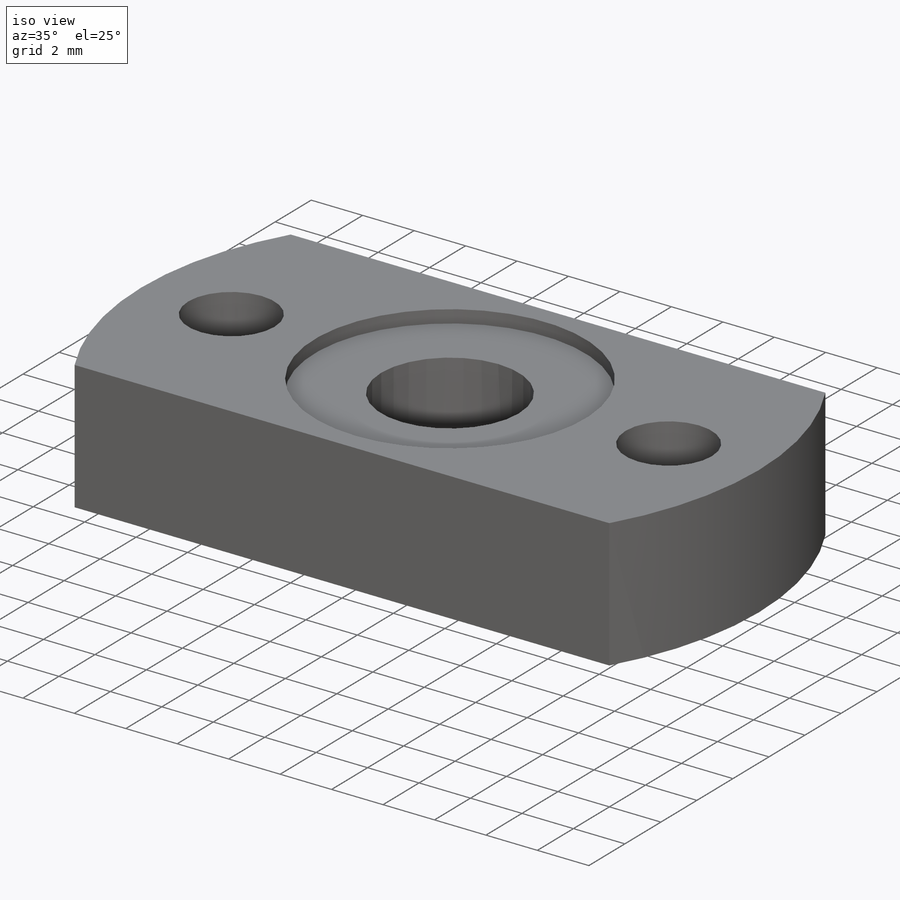
[diagram: iso view]
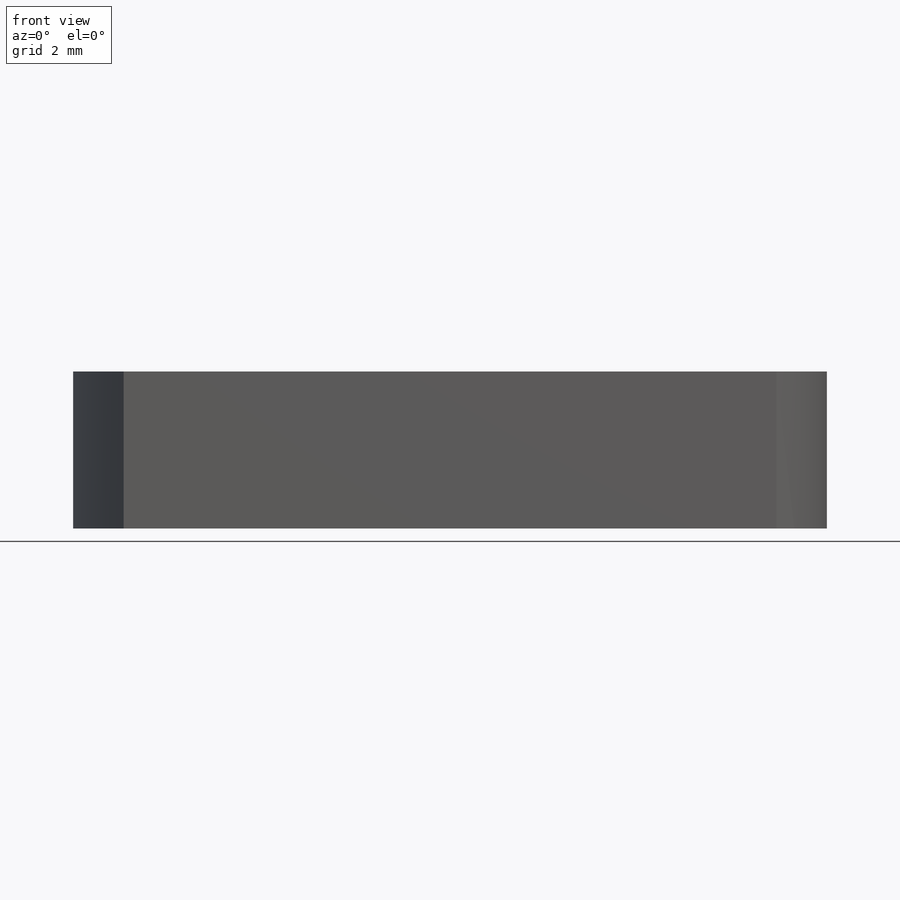
[diagram: front view]
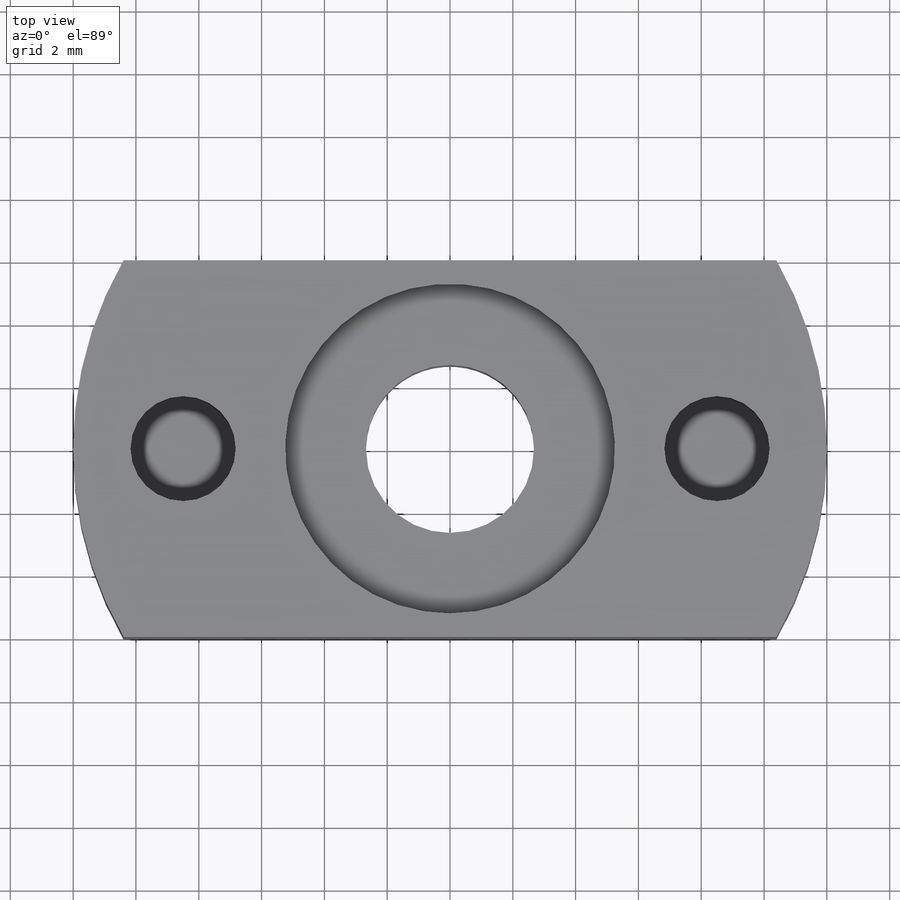
[diagram: top view]
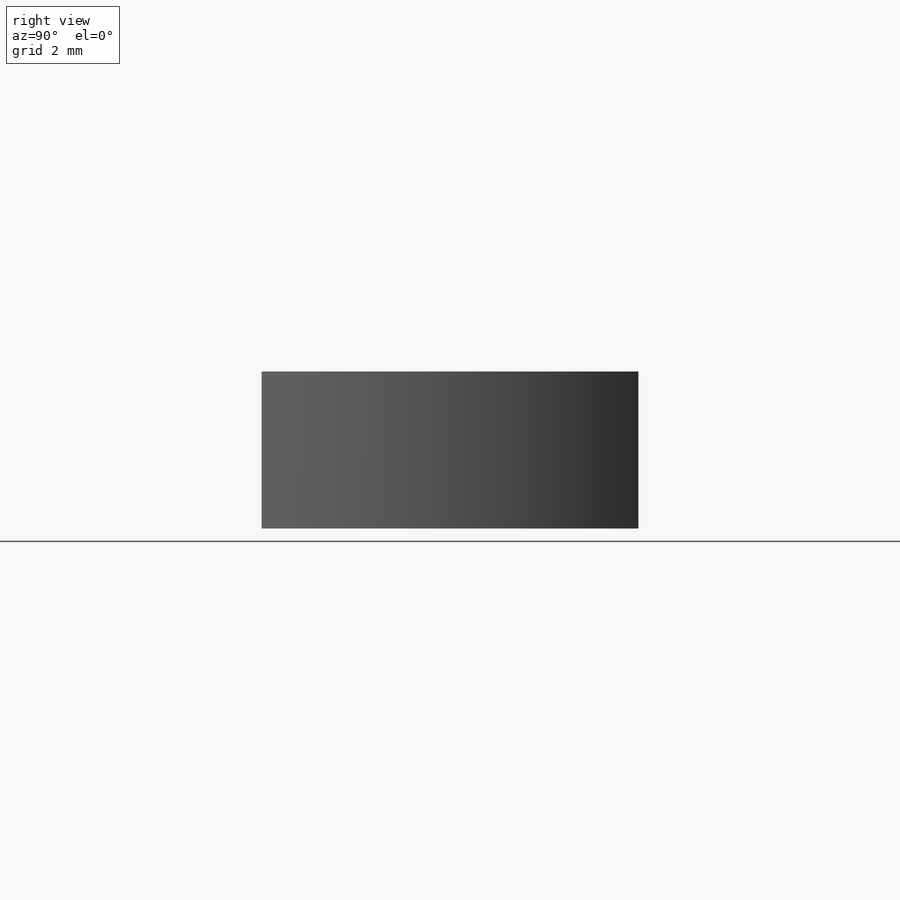
[diagram: right view]
SOLIDWORKS PART (.sldprt)
format: sldprt  version: not decoded by parser v0  size: 227,840 bytes
history: native  units: mm
features: sketch x6, cut_extrude x4, extrude x2, material x1, fillet x1 (+16 scaffold rows collapsed)
feature tree (30):
  scaffold x16  (default folders/planes/origin — collapsed)
  material  "Material <not specified>"
  sketch  "Sketch1"  dims[D1=24.0mm D2=5.35mm]
  extrude  "Boss-Extrude1"  Depth=5mm
  sketch  "Sketch3"  dims[D1=3.35mm D2=17.0mm D3=8.5mm]
  cut_extrude  "Cut-Extrude1"  Depth=6mm
  sketch  "Sketch4"  dims[D1=5.85mm]
  cut_extrude  "Cut-Extrude2"  Depth=2.5mm
  sketch  "Sketch6"  dims[D1=6.0mm D2=6.0mm]
  cut_extrude  "Cut-Extrude4"  Depth=10mm
  fillet  "Fillet1"  Radius=1mm
  sketch  "Sketch7"  dims[D1=10.5mm]
  cut_extrude  "Cut-Extrude5"  Depth=0.5mm
  sketch  "Sketch8"
  extrude  "Boss-Extrude2"  Depth=0.5mm
decode coverage: 12 of 13 modeling features carry decoded parameters
note: suppression state not decoded; provenance and decode notes live in map.json
